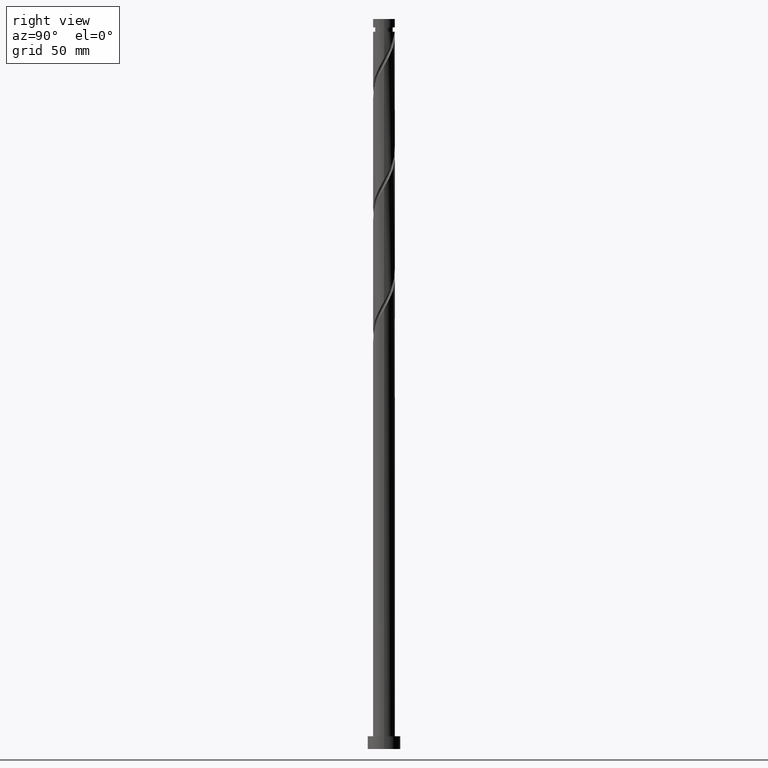
[diagram: clean part render]
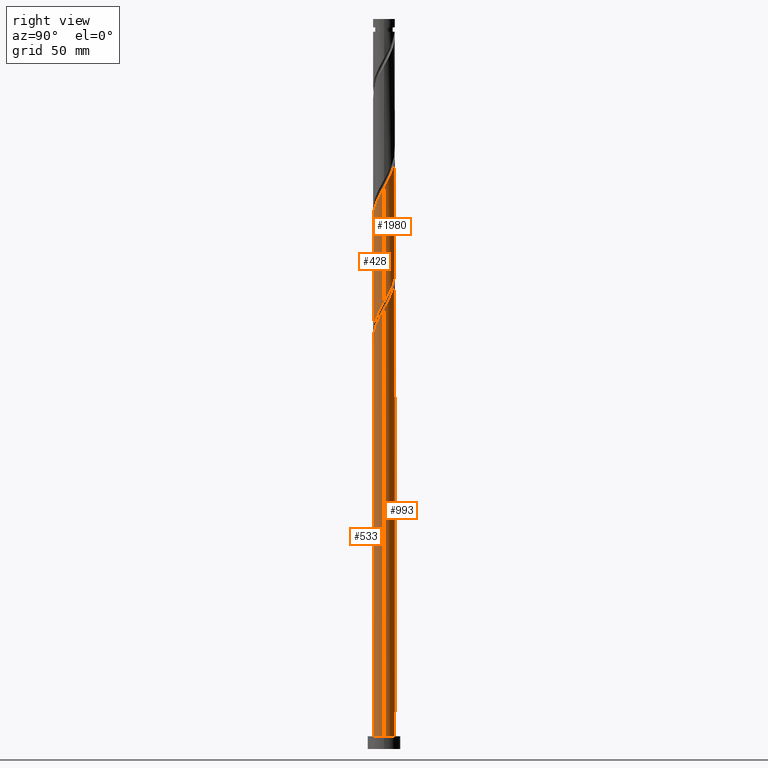
[diagram: same view with one multi-face feature highlighted, each face labeled with its STEP entity id]
A machine part, right view. The highlighted faces form ONE feature: a constant-radius fillet chain: 4 tangent blend faces with common blend radius 6 mm. The faces share edges in the B-rep.
Their STEP definitions:
[1] entity #533 (Cylinder):
#4 = EDGE_LOOP ( 'NONE', ( #1897, #1946, #1798, #1835 ) ) ;
#95 = CARTESIAN_POINT ( 'NONE',  ( -3.063968989743309113, -5.197093653152656145, 218.6103501158607969 ) ) ;
#107 = CARTESIAN_POINT ( 'NONE',  ( 5.689221836516478170, -1.905978723623156901, 237.4992390047497111 ) ) ;
#141 = CARTESIAN_POINT ( 'NONE',  ( 6.000000000000008882, 3.318548223387681689E-15, 240.9293513167838228 ) ) ;
#152 = DIRECTION ( 'NONE',  ( 1.000000000000000000, 0.000000000000000000, 0.000000000000000000 ) ) ;
#217 = CARTESIAN_POINT ( 'NONE',  ( -0.05462725276908186184, -5.999751316784303512, 224.1659056714163967 ) ) ;
#241 = CARTESIAN_POINT ( 'NONE',  ( -3.570759717274362366, -4.821791683751050606, 217.4992390047497395 ) ) ;
#274 = FACE_OUTER_BOUND ( 'NONE', #4, .T. ) ;
#298 = CARTESIAN_POINT ( 'NONE',  ( 1.811997827890124535, -5.754507127588753157, 227.4992390047497395 ) ) ;
#309 = DIRECTION ( 'NONE',  ( -1.000000000000000000, 0.000000000000000000, 0.000000000000000000 ) ) ;
#362 = VECTOR ( 'NONE', #2004, 1000.000000000000000 ) ;
#372 = CARTESIAN_POINT ( 'NONE',  ( -1.916477387274986510, -5.720559660890874198, 220.8325723380830823 ) ) ;
#406 = CARTESIAN_POINT ( 'NONE',  ( -6.000000000000007994, 2.819271148337463204E-14, 207.5960179834504231 ) ) ;
#426 = CARTESIAN_POINT ( 'NONE',  ( 2.390414231247771415, -5.503264467845264463, 228.6103501158608253 ) ) ;
#447 = DIRECTION ( 'NONE',  ( 0.000000000000000000, 0.000000000000000000, 1.000000000000000000 ) ) ;
#469 = VERTEX_POINT ( 'NONE', #532 ) ;
#494 = CARTESIAN_POINT ( 'NONE',  ( -6.000000000000000888, 0.000000000000000000, 7.000000000000000000 ) ) ;
#499 = EDGE_CURVE ( 'NONE', #1539, #601, #504, .T. ) ;
#504 =( BOUNDED_CURVE ( )  B_SPLINE_CURVE ( 2, ( #406, #1334, #1645, #1161, #1035, #1478, #880, #518, #509, #1498, #241, #95, #1152, #372, #1003, #1621, #217, #691, #587, #298, #426, #1522, #1971, #1054, #1239, #1677, #1085, #615, #107, #892, #1543, #1202, #141 ),
 .UNSPECIFIED., .F., .T. ) 
 B_SPLINE_CURVE_WITH_KNOTS ( ( 3, 2, 2, 2, 2, 2, 2, 2, 2, 2, 2, 2, 2, 2, 2, 2, 3 ),
 ( 0.05452860127731127410, 0.05833333333333334814, 0.06666666666666665186, 0.07499999999999995559, 0.08333333333333337034, 0.09166666666666667407, 0.09999999999999997780, 0.1083333333333332815, 0.1166666666666666963, 0.1250000000000000000, 0.1333333333333333037, 0.1416666666666667185, 0.1500000000000000222, 0.1583333333333333259, 0.1666666666666666297, 0.1750000000000000444, 0.1795286012773115170 ),
 .UNSPECIFIED. ) 
 CURVE ( )  GEOMETRIC_REPRESENTATION_ITEM ( )  RATIONAL_B_SPLINE_CURVE ( ( 0.9066196499552254817, 0.9068171577856380949, 0.9090909090909370383, 0.9041108139711853120, 0.9090909090909370383, 0.9041108139711853120, 0.9090909090909370383, 0.9041108139711853120, 0.9090909090909370383, 0.9041108139711853120, 0.9090909090909370383, 0.9041108139711853120, 0.9090909090909370383, 0.9041108139711853120, 0.9090909090909370383, 0.9041108139711853120, 0.9090909090909370383, 0.9041108139711853120, 0.9090909090909370383, 0.9041108139711853120, 0.9090909090909370383, 0.9041108139711853120, 0.9090909090909370383, 0.9041108139711853120, 0.9090909090909370383, 0.9041108139711853120, 0.9090909090909370383, 0.9041108139711853120, 0.9090909090909370383, 0.9041108139711853120, 0.9090909090909370383, 0.9063845652764841443, 0.9066196499552253707 ) ) 
 REPRESENTATION_ITEM ( '' )  );
#509 = CARTESIAN_POINT ( 'NONE',  ( -4.495236911988532036, -3.974021276376851208, 215.2770167825274825 ) ) ;
#518 = CARTESIAN_POINT ( 'NONE',  ( -4.912923379171648897, -3.501552838404256018, 214.1659056714164251 ) ) ;
#532 = CARTESIAN_POINT ( 'NONE',  ( 6.000000000000000888, 7.347880794884120722E-16, 7.000000000000000000 ) ) ;
#533 = ADVANCED_FACE ( 'NONE', ( #274 ), #1214, .T. ) ;
#587 = CARTESIAN_POINT ( 'NONE',  ( 1.193984924527947911, -5.880000000000006999, 226.3881278936386252 ) ) ;
#591 = AXIS2_PLACEMENT_3D ( 'NONE', #1981, #736, #309 ) ;
#601 = VERTEX_POINT ( 'NONE', #1993 ) ;
#615 = CARTESIAN_POINT ( 'NONE',  ( 5.488895400337416852, -2.503940034007006599, 236.3881278936386252 ) ) ;
#661 = AXIS2_PLACEMENT_3D ( 'NONE', #1227, #447, #152 ) ;
#691 = CARTESIAN_POINT ( 'NONE',  ( 0.5759720211657686217, -6.005492872411262617, 225.2770167825275109 ) ) ;
#736 = DIRECTION ( 'NONE',  ( -0.000000000000000000, -0.000000000000000000, -1.000000000000000000 ) ) ;
#793 = LINE ( 'NONE', #1715, #362 ) ;
#813 = LINE ( 'NONE', #1432, #1216 ) ;
#879 = EDGE_CURVE ( 'NONE', #1688, #469, #1151, .T. ) ;
#880 = CARTESIAN_POINT ( 'NONE',  ( -5.223250683108884296, -2.952567069755174689, 213.0547945603052824 ) ) ;
#892 = CARTESIAN_POINT ( 'NONE',  ( 5.889548272695538600, -1.308017413239306981, 238.6103501158609106 ) ) ;
#1003 = CARTESIAN_POINT ( 'NONE',  ( -1.300851956989458325, -5.857284711024109747, 221.9436834491942250 ) ) ;
#1035 = CARTESIAN_POINT ( 'NONE',  ( -5.722983335439801422, -1.802071514196482704, 210.8325723380830539 ) ) ;
#1054 = CARTESIAN_POINT ( 'NONE',  ( 3.995911296558496417, -4.519997933604003926, 231.9436834491941966 ) ) ;
#1085 = CARTESIAN_POINT ( 'NONE',  ( 5.168623430339803093, -3.047184247029130599, 235.2770167825274825 ) ) ;
#1104 = EDGE_CURVE ( 'NONE', #601, #469, #813, .T. ) ;
#1131 = DIRECTION ( 'NONE',  ( -0.000000000000000000, -0.000000000000000000, -1.000000000000000000 ) ) ;
#1151 = CIRCLE ( 'NONE', #661, 6.000000000000000888 ) ;
#1152 = CARTESIAN_POINT ( 'NONE',  ( -2.490223188509146812, -5.458826657021764284, 219.7214612269719680 ) ) ;
#1161 = CARTESIAN_POINT ( 'NONE',  ( -5.912388683833484038, -1.200561727286872271, 209.7214612269719680 ) ) ;
#1202 = CARTESIAN_POINT ( 'NONE',  ( 6.000000000000008882, -0.3418424246785950471, 240.3237600073993008 ) ) ;
#1214 = CYLINDRICAL_SURFACE ( 'NONE', #591, 6.000000000000000888 ) ;
#1216 = VECTOR ( 'NONE', #1131, 1000.000000000000000 ) ;
#1227 = CARTESIAN_POINT ( 'NONE',  ( 0.000000000000000000, 0.000000000000000000, 7.000000000000000000 ) ) ;
#1239 = CARTESIAN_POINT ( 'NONE',  ( 4.422131378450344208, -4.055213196827626376, 233.0547945603053108 ) ) ;
#1334 = CARTESIAN_POINT ( 'NONE',  ( -6.000000000000008882, -0.2870639957204812465, 208.1045665090144610 ) ) ;
#1415 = CARTESIAN_POINT ( 'NONE',  ( -6.000000000000007994, 2.819271148337463204E-14, 207.5960179834504231 ) ) ;
#1432 = CARTESIAN_POINT ( 'NONE',  ( 6.000000000000000888, 7.347880794884120722E-16, 400.0000000000000000 ) ) ;
#1478 = CARTESIAN_POINT ( 'NONE',  ( -5.533577987046123248, -2.403581301106092916, 211.9436834491941966 ) ) ;
#1498 = CARTESIAN_POINT ( 'NONE',  ( -4.077550444805414287, -4.446489714349447731, 216.3881278936386536 ) ) ;
#1522 = CARTESIAN_POINT ( 'NONE',  ( 2.968830634605418073, -5.252021808101776656, 229.7214612269719964 ) ) ;
#1539 = VERTEX_POINT ( 'NONE', #1415 ) ;
#1543 = CARTESIAN_POINT ( 'NONE',  ( 5.961173948522133337, -0.6814727840942111925, 239.7214612269719680 ) ) ;
#1621 = CARTESIAN_POINT ( 'NONE',  ( -0.6852265267039298058, -5.994009761157345295, 223.0547945603053108 ) ) ;
#1623 = EDGE_CURVE ( 'NONE', #1539, #1688, #793, .T. ) ;
#1645 = CARTESIAN_POINT ( 'NONE',  ( -5.972594154091105167, -0.5728167861688754359, 208.6103501158609106 ) ) ;
#1677 = CARTESIAN_POINT ( 'NONE',  ( 4.848351460342188446, -3.590428460051252824, 234.1659056714164251 ) ) ;
#1688 = VERTEX_POINT ( 'NONE', #494 ) ;
#1715 = CARTESIAN_POINT ( 'NONE',  ( -6.000000000000000888, 0.000000000000000000, 400.0000000000000000 ) ) ;
#1798 = ORIENTED_EDGE ( 'NONE', *, *, #1623, .T. ) ;
#1835 = ORIENTED_EDGE ( 'NONE', *, *, #879, .T. ) ;
#1897 = ORIENTED_EDGE ( 'NONE', *, *, #1104, .F. ) ;
#1946 = ORIENTED_EDGE ( 'NONE', *, *, #499, .F. ) ;
#1971 = CARTESIAN_POINT ( 'NONE',  ( 3.482370965581957467, -4.886009870852891623, 230.8325723380830823 ) ) ;
#1981 = CARTESIAN_POINT ( 'NONE',  ( 0.000000000000000000, 0.000000000000000000, 400.0000000000000000 ) ) ;
#1993 = CARTESIAN_POINT ( 'NONE',  ( 6.000000000000008882, 3.318548223387681689E-15, 240.9293513167838228 ) ) ;
#2004 = DIRECTION ( 'NONE',  ( -0.000000000000000000, -0.000000000000000000, -1.000000000000000000 ) ) ;
[2] entity #993 (Cylinder):
#16 = CARTESIAN_POINT ( 'NONE',  ( -3.570759717274355705, 4.821791683751045277, 201.9436834491942250 ) ) ;
#18 = CARTESIAN_POINT ( 'NONE',  ( -6.000000000000008882, 0.3418424246785894960, 273.6570933407326152 ) ) ;
#33 = CARTESIAN_POINT ( 'NONE',  ( -6.000000000000005329, 0.3418424246786118115, 206.9904266740658727 ) ) ;
#35 = CARTESIAN_POINT ( 'NONE',  ( 0.05462725276908272226, 5.999751316784303512, 257.4992390047497111 ) ) ;
#43 = CARTESIAN_POINT ( 'NONE',  ( 4.495236911988532924, 3.974021276376848988, 248.6103501158608537 ) ) ;
#57 = CARTESIAN_POINT ( 'NONE',  ( -5.889548272695540376, 1.308017413239303206, 205.2770167825275394 ) ) ;
#102 = ORIENTED_EDGE ( 'NONE', *, *, #1623, .F. ) ;
#115 = ORIENTED_EDGE ( 'NONE', *, *, #1293, .F. ) ;
#144 = ORIENTED_EDGE ( 'NONE', *, *, #275, .F. ) ;
#151 = CARTESIAN_POINT ( 'NONE',  ( -1.916477387274980959, 5.720559660890866205, 198.6103501158608822 ) ) ;
#166 = CARTESIAN_POINT ( 'NONE',  ( -2.490223188509142371, 5.458826657021758066, 199.7214612269719964 ) ) ;
#176 = CARTESIAN_POINT ( 'NONE',  ( -3.995911296558498638, 4.519997933604003038, 198.6103501158608822 ) ) ;
#177 = CARTESIAN_POINT ( 'NONE',  ( 0.000000000000000000, 0.000000000000000000, 400.0000000000000000 ) ) ;
#178 = CARTESIAN_POINT ( 'NONE',  ( 3.063968989743312665, 5.197093653152654369, 251.9436834491941681 ) ) ;
#198 = CARTESIAN_POINT ( 'NONE',  ( 0.6852265267039308050, 5.994009761157345295, 256.3881278936386821 ) ) ;
#199 = CIRCLE ( 'NONE', #1831, 6.000000000000000888 ) ;
#213 = CARTESIAN_POINT ( 'NONE',  ( -1.193984924527947244, 5.880000000000007887, 193.0547945603053108 ) ) ;
#215 = VERTEX_POINT ( 'NONE', #1047 ) ;
#275 = EDGE_CURVE ( 'NONE', #601, #1719, #943, .T. ) ;
#278 = CARTESIAN_POINT ( 'NONE',  ( 4.912923379171648897, 3.501552838404255574, 247.4992390047497395 ) ) ;
#289 = CARTESIAN_POINT ( 'NONE',  ( -1.811997827890126533, 5.754507127588748716, 260.8325723380830254 ) ) ;
#296 = CARTESIAN_POINT ( 'NONE',  ( -0.05462725276907857280, 5.999751316784295518, 195.2770167825275109 ) ) ;
#334 = CARTESIAN_POINT ( 'NONE',  ( -3.482370965581957911, 4.886009870852888071, 197.4992390047497111 ) ) ;
#335 = DIRECTION ( 'NONE',  ( -1.000000000000000000, 0.000000000000000000, 0.000000000000000000 ) ) ;
#357 = CARTESIAN_POINT ( 'NONE',  ( -5.961173948522133337, 0.6814727840942104153, 206.3881278936385968 ) ) ;
#362 = VECTOR ( 'NONE', #2004, 1000.000000000000000 ) ;
#383 = EDGE_CURVE ( 'NONE', #1586, #1111, #560, .T. ) ;
#464 = CARTESIAN_POINT ( 'NONE',  ( -1.193984924527947244, 5.880000000000007887, 193.0547945603053392 ) ) ;
#466 = CYLINDRICAL_SURFACE ( 'NONE', #1676, 6.000000000000000888 ) ;
#469 = VERTEX_POINT ( 'NONE', #532 ) ;
#489 = CARTESIAN_POINT ( 'NONE',  ( 3.570759717274364142, 4.821791683751050606, 250.8325723380830254 ) ) ;
#494 = CARTESIAN_POINT ( 'NONE',  ( -6.000000000000000888, 0.000000000000000000, 7.000000000000000000 ) ) ;
#532 = CARTESIAN_POINT ( 'NONE',  ( 6.000000000000000888, 7.347880794884120722E-16, 7.000000000000000000 ) ) ;
#542 = DIRECTION ( 'NONE',  ( 0.000000000000000000, 1.000000000000000000, -1.387778780781445518E-14 ) ) ;
#543 = ORIENTED_EDGE ( 'NONE', *, *, #383, .T. ) ;
#560 = CIRCLE ( 'NONE', #826, 6.000000000000000888 ) ;
#576 = ORIENTED_EDGE ( 'NONE', *, *, #1865, .T. ) ;
#600 = CARTESIAN_POINT ( 'NONE',  ( -1.300851956989454106, 5.857284711024100865, 197.4992390047497111 ) ) ;
#601 = VERTEX_POINT ( 'NONE', #1993 ) ;
#607 = CARTESIAN_POINT ( 'NONE',  ( -5.488895400337417740, 2.503940034007005710, 269.7214612269719396 ) ) ;
#640 = CARTESIAN_POINT ( 'NONE',  ( 1.193984924527949021, 5.879999999999997229, 193.0547945603053392 ) ) ;
#642 = CARTESIAN_POINT ( 'NONE',  ( 4.077550444805415175, 4.446489714349447731, 249.7214612269719680 ) ) ;
#652 = CARTESIAN_POINT ( 'NONE',  ( -1.193984924527946578, 5.880000000000006999, 259.7214612269719964 ) ) ;
#662 = CARTESIAN_POINT ( 'NONE',  ( -5.168623430339803093, 3.047184247029129267, 268.6103501158608537 ) ) ;
#668 =( BOUNDED_CURVE ( )  B_SPLINE_CURVE ( 2, ( #1686, #1237, #1870, #913, #1706, #955, #1531, #936, #754, #1376, #16, #1074, #166, #151, #600, #1226, #296, #1399, #1272 ),
 .UNSPECIFIED., .F., .T. ) 
 B_SPLINE_CURVE_WITH_KNOTS ( ( 3, 2, 2, 2, 2, 2, 2, 2, 2, 3 ),
 ( 0.9295286012773114059, 0.9333333333333333481, 0.9416666666666666519, 0.9499999999999999556, 0.9583333333333333703, 0.9666666666666666741, 0.9749999999999999778, 0.9833333333333332815, 0.9916666666666666963, 1.000000000000000000 ),
 .UNSPECIFIED. ) 
 CURVE ( )  GEOMETRIC_REPRESENTATION_ITEM ( )  RATIONAL_B_SPLINE_CURVE ( ( 0.9066196499552193755, 0.9068171577856320997, 0.9090909090909310430, 0.9041108139711793168, 0.9090909090909310430, 0.9041108139711793168, 0.9090909090909310430, 0.9041108139711793168, 0.9090909090909310430, 0.9041108139711793168, 0.9090909090909310430, 0.9041108139711793168, 0.9090909090909310430, 0.9041108139711793168, 0.9090909090909310430, 0.9041108139711793168, 0.9090909090909310430, 0.9041108139711793168, 0.9090909090909310430 ) ) 
 REPRESENTATION_ITEM ( '' )  );
#713 = CARTESIAN_POINT ( 'NONE',  ( 0.000000000000000000, 0.000000000000000000, 193.0547945603053961 ) ) ;
#738 = CARTESIAN_POINT ( 'NONE',  ( 5.972594154091105167, 0.5728167861688723272, 241.9436834491941966 ) ) ;
#742 = ORIENTED_EDGE ( 'NONE', *, *, #1104, .T. ) ;
#754 = CARTESIAN_POINT ( 'NONE',  ( -4.495236911988522266, 3.974021276376848100, 204.1659056714164251 ) ) ;
#759 = CARTESIAN_POINT ( 'NONE',  ( -4.422131378450345096, 4.055213196827626376, 266.3881278936385684 ) ) ;
#793 = LINE ( 'NONE', #1715, #362 ) ;
#804 = CARTESIAN_POINT ( 'NONE',  ( -1.811997827890126533, 5.754507127588748716, 194.1659056714164251 ) ) ;
#806 = DIRECTION ( 'NONE',  ( -0.000000000000000000, -0.000000000000000000, -1.000000000000000000 ) ) ;
#812 = CARTESIAN_POINT ( 'NONE',  ( -2.968830634605418961, 5.252021808101774880, 196.3881278936386821 ) ) ;
#813 = LINE ( 'NONE', #1432, #1216 ) ;
#815 = CARTESIAN_POINT ( 'NONE',  ( -0.5759720211657650690, 6.005492872411263505, 258.6103501158607969 ) ) ;
#821 = DIRECTION ( 'NONE',  ( 0.000000000000000000, 0.000000000000000000, 1.000000000000000000 ) ) ;
#826 = AXIS2_PLACEMENT_3D ( 'NONE', #713, #1454, #542 ) ;
#840 = CARTESIAN_POINT ( 'NONE',  ( -4.848351460342189334, 3.590428460051251935, 200.8325723380830823 ) ) ;
#913 = CARTESIAN_POINT ( 'NONE',  ( -5.912388683833474268, 1.200561727286872271, 209.7214612269719680 ) ) ;
#936 = CARTESIAN_POINT ( 'NONE',  ( -4.912923379171640015, 3.501552838404253354, 205.2770167825275394 ) ) ;
#943 =( BOUNDED_CURVE ( )  B_SPLINE_CURVE ( 2, ( #1668, #1514, #738, #1984, #1824, #1057, #1679, #278, #43, #642, #489, #178, #1996, #983, #968, #198, #35, #815, #652, #289, #1751, #975, #1900, #1433, #759, #1229, #662, #607, #1444, #1847, #1734, #18, #1535 ),
 .UNSPECIFIED., .F., .T. ) 
 B_SPLINE_CURVE_WITH_KNOTS ( ( 3, 2, 2, 2, 2, 2, 2, 2, 2, 2, 2, 2, 2, 2, 2, 2, 3 ),
 ( 0.1795286012773115170, 0.1833333333333333481, 0.1916666666666666519, 0.1999999999999999556, 0.2083333333333333703, 0.2166666666666666741, 0.2249999999999999778, 0.2333333333333332815, 0.2416666666666666963, 0.2500000000000000000, 0.2583333333333333037, 0.2666666666666667185, 0.2750000000000000222, 0.2833333333333333259, 0.2916666666666666297, 0.3000000000000000444, 0.3045286012773115725 ),
 .UNSPECIFIED. ) 
 CURVE ( )  GEOMETRIC_REPRESENTATION_ITEM ( )  RATIONAL_B_SPLINE_CURVE ( ( 0.9066196499552253707, 0.9068171577856380949, 0.9090909090909370383, 0.9041108139711853120, 0.9090909090909370383, 0.9041108139711853120, 0.9090909090909370383, 0.9041108139711853120, 0.9090909090909370383, 0.9041108139711853120, 0.9090909090909370383, 0.9041108139711853120, 0.9090909090909370383, 0.9041108139711853120, 0.9090909090909370383, 0.9041108139711853120, 0.9090909090909370383, 0.9041108139711853120, 0.9090909090909370383, 0.9041108139711853120, 0.9090909090909370383, 0.9041108139711853120, 0.9090909090909370383, 0.9041108139711853120, 0.9090909090909370383, 0.9041108139711853120, 0.9090909090909370383, 0.9041108139711853120, 0.9090909090909370383, 0.9041108139711853120, 0.9090909090909370383, 0.9063845652764841443, 0.9066196499552254817 ) ) 
 REPRESENTATION_ITEM ( '' )  );
#955 = CARTESIAN_POINT ( 'NONE',  ( -5.533577987046111701, 2.403581301106092916, 207.4992390047497963 ) ) ;
#968 = CARTESIAN_POINT ( 'NONE',  ( 1.300851956989461655, 5.857284711024107970, 255.2770167825274541 ) ) ;
#975 = CARTESIAN_POINT ( 'NONE',  ( -2.968830634605418961, 5.252021808101774880, 263.0547945603053108 ) ) ;
#983 = CARTESIAN_POINT ( 'NONE',  ( 1.916477387274987398, 5.720559660890873310, 254.1659056714163682 ) ) ;
#993 = ADVANCED_FACE ( 'NONE', ( #2014 ), #466, .T. ) ;
#1047 = CARTESIAN_POINT ( 'NONE',  ( -5.999999999999999112, -8.759771436509885774E-15, 211.8469044704934845 ) ) ;
#1057 = CARTESIAN_POINT ( 'NONE',  ( 5.533577987046123248, 2.403581301106089363, 245.2770167825275394 ) ) ;
#1074 = CARTESIAN_POINT ( 'NONE',  ( -3.063968989743303339, 5.197093653152651704, 200.8325723380831107 ) ) ;
#1104 = EDGE_CURVE ( 'NONE', #601, #469, #813, .T. ) ;
#1111 = VERTEX_POINT ( 'NONE', #640 ) ;
#1120 = EDGE_LOOP ( 'NONE', ( #144, #742, #576, #102, #1421, #543, #1651, #115 ) ) ;
#1129 = CARTESIAN_POINT ( 'NONE',  ( -2.390414231247772747, 5.503264467845264463, 195.2770167825275109 ) ) ;
#1131 = DIRECTION ( 'NONE',  ( -0.000000000000000000, -0.000000000000000000, -1.000000000000000000 ) ) ;
#1178 = CARTESIAN_POINT ( 'NONE',  ( -6.000000000000000888, 0.000000000000000000, 400.0000000000000000 ) ) ;
#1216 = VECTOR ( 'NONE', #1131, 1000.000000000000000 ) ;
#1226 = CARTESIAN_POINT ( 'NONE',  ( -0.6852265267039274743, 5.994009761157336413, 196.3881278936386252 ) ) ;
#1229 = CARTESIAN_POINT ( 'NONE',  ( -4.848351460342189334, 3.590428460051251935, 267.4992390047498247 ) ) ;
#1237 = CARTESIAN_POINT ( 'NONE',  ( -5.999999999999999112, 0.2870639957204937920, 211.3383559449293898 ) ) ;
#1272 = CARTESIAN_POINT ( 'NONE',  ( 1.193984924527949021, 5.879999999999997229, 193.0547945603053392 ) ) ;
#1293 = EDGE_CURVE ( 'NONE', #1719, #215, #1779, .T. ) ;
#1376 = CARTESIAN_POINT ( 'NONE',  ( -4.077550444805408070, 4.446489714349443290, 203.0547945603052824 ) ) ;
#1399 = CARTESIAN_POINT ( 'NONE',  ( 0.5759720211657700650, 6.005492872411254623, 194.1659056714163967 ) ) ;
#1415 = CARTESIAN_POINT ( 'NONE',  ( -6.000000000000007994, 2.819271148337463204E-14, 207.5960179834504231 ) ) ;
#1421 = ORIENTED_EDGE ( 'NONE', *, *, #1770, .F. ) ;
#1424 = CARTESIAN_POINT ( 'NONE',  ( -5.488895400337417740, 2.503940034007005710, 203.0547945603053108 ) ) ;
#1431 = CARTESIAN_POINT ( 'NONE',  ( -6.000000000000007994, 1.145048621222956892E-14, 274.2626846501171372 ) ) ;
#1432 = CARTESIAN_POINT ( 'NONE',  ( 6.000000000000000888, 7.347880794884120722E-16, 400.0000000000000000 ) ) ;
#1433 = CARTESIAN_POINT ( 'NONE',  ( -3.995911296558498638, 4.519997933604003038, 265.2770167825275394 ) ) ;
#1444 = CARTESIAN_POINT ( 'NONE',  ( -5.689221836516479058, 1.905978723623155346, 270.8325723380830254 ) ) ;
#1454 = DIRECTION ( 'NONE',  ( -2.567906592516313186E-30, -1.156482317317871607E-14, -1.000000000000000000 ) ) ;
#1514 = CARTESIAN_POINT ( 'NONE',  ( 6.000000000000008882, 0.2870639957204970116, 241.4378998423478606 ) ) ;
#1531 = CARTESIAN_POINT ( 'NONE',  ( -5.223250683108875414, 2.952567069755172469, 206.3881278936386536 ) ) ;
#1535 = CARTESIAN_POINT ( 'NONE',  ( -6.000000000000007994, 1.145048621222956892E-14, 274.2626846501171372 ) ) ;
#1539 = VERTEX_POINT ( 'NONE', #1415 ) ;
#1581 = DIRECTION ( 'NONE',  ( 1.000000000000000000, 0.000000000000000000, 0.000000000000000000 ) ) ;
#1586 = VERTEX_POINT ( 'NONE', #464 ) ;
#1596 = CARTESIAN_POINT ( 'NONE',  ( -5.689221836516479058, 1.905978723623155346, 204.1659056714163967 ) ) ;
#1606 = CARTESIAN_POINT ( 'NONE',  ( -5.168623430339803093, 3.047184247029129267, 201.9436834491942250 ) ) ;
#1616 = CARTESIAN_POINT ( 'NONE',  ( -4.422131378450345096, 4.055213196827626376, 199.7214612269719396 ) ) ;
#1623 = EDGE_CURVE ( 'NONE', #1539, #1688, #793, .T. ) ;
#1634 =( BOUNDED_CURVE ( )  B_SPLINE_CURVE ( 2, ( #213, #804, #1129, #812, #334, #176, #1616, #840, #1606, #1424, #1596, #57, #357, #33, #1886 ),
 .UNSPECIFIED., .F., .T. ) 
 B_SPLINE_CURVE_WITH_KNOTS ( ( 3, 2, 2, 2, 2, 2, 2, 3 ),
 ( 0.000000000000000000, 0.008333333333333303727, 0.01666666666666671848, 0.02500000000000002220, 0.03333333333333332593, 0.04166666666666662966, 0.05000000000000004441, 0.05452860127731127410 ),
 .UNSPECIFIED. ) 
 CURVE ( )  GEOMETRIC_REPRESENTATION_ITEM ( )  RATIONAL_B_SPLINE_CURVE ( ( 0.9090909090909370383, 0.9041108139711853120, 0.9090909090909370383, 0.9041108139711853120, 0.9090909090909370383, 0.9041108139711853120, 0.9090909090909370383, 0.9041108139711853120, 0.9090909090909370383, 0.9041108139711853120, 0.9090909090909370383, 0.9041108139711853120, 0.9090909090909370383, 0.9063845652764843663, 0.9066196499552254817 ) ) 
 REPRESENTATION_ITEM ( '' )  );
#1651 = ORIENTED_EDGE ( 'NONE', *, *, #1665, .F. ) ;
#1665 = EDGE_CURVE ( 'NONE', #215, #1111, #668, .T. ) ;
#1668 = CARTESIAN_POINT ( 'NONE',  ( 6.000000000000008882, 3.318548223387681689E-15, 240.9293513167838228 ) ) ;
#1676 = AXIS2_PLACEMENT_3D ( 'NONE', #177, #806, #335 ) ;
#1679 = CARTESIAN_POINT ( 'NONE',  ( 5.223250683108884296, 2.952567069755173801, 246.3881278936385968 ) ) ;
#1686 = CARTESIAN_POINT ( 'NONE',  ( -5.999999999999999112, -8.759771436509885774E-15, 211.8469044704934845 ) ) ;
#1688 = VERTEX_POINT ( 'NONE', #494 ) ;
#1706 = CARTESIAN_POINT ( 'NONE',  ( -5.722983335439793429, 1.802071514196482482, 208.6103501158608822 ) ) ;
#1715 = CARTESIAN_POINT ( 'NONE',  ( -6.000000000000000888, 0.000000000000000000, 400.0000000000000000 ) ) ;
#1719 = VERTEX_POINT ( 'NONE', #1431 ) ;
#1734 = CARTESIAN_POINT ( 'NONE',  ( -5.961173948522133337, 0.6814727840942104153, 273.0547945603053108 ) ) ;
#1736 = VECTOR ( 'NONE', #1928, 1000.000000000000000 ) ;
#1751 = CARTESIAN_POINT ( 'NONE',  ( -2.390414231247772747, 5.503264467845264463, 261.9436834491941681 ) ) ;
#1770 = EDGE_CURVE ( 'NONE', #1586, #1539, #1634, .T. ) ;
#1779 = LINE ( 'NONE', #1178, #1736 ) ;
#1824 = CARTESIAN_POINT ( 'NONE',  ( 5.722983335439801422, 1.802071514196480484, 244.1659056714164251 ) ) ;
#1831 = AXIS2_PLACEMENT_3D ( 'NONE', #1906, #821, #1581 ) ;
#1847 = CARTESIAN_POINT ( 'NONE',  ( -5.889548272695540376, 1.308017413239303206, 271.9436834491941681 ) ) ;
#1865 = EDGE_CURVE ( 'NONE', #469, #1688, #199, .T. ) ;
#1870 = CARTESIAN_POINT ( 'NONE',  ( -5.972594154091097174, 0.5728167861688778784, 210.8325723380830539 ) ) ;
#1886 = CARTESIAN_POINT ( 'NONE',  ( -6.000000000000007994, 2.819271148337463204E-14, 207.5960179834504231 ) ) ;
#1900 = CARTESIAN_POINT ( 'NONE',  ( -3.482370965581957911, 4.886009870852888071, 264.1659056714164535 ) ) ;
#1906 = CARTESIAN_POINT ( 'NONE',  ( 0.000000000000000000, 0.000000000000000000, 7.000000000000000000 ) ) ;
#1928 = DIRECTION ( 'NONE',  ( -0.000000000000000000, -0.000000000000000000, -1.000000000000000000 ) ) ;
#1984 = CARTESIAN_POINT ( 'NONE',  ( 5.912388683833484038, 1.200561727286871383, 243.0547945603053108 ) ) ;
#1993 = CARTESIAN_POINT ( 'NONE',  ( 6.000000000000008882, 3.318548223387681689E-15, 240.9293513167838228 ) ) ;
#1996 = CARTESIAN_POINT ( 'NONE',  ( 2.490223188509147700, 5.458826657021764284, 253.0547945603053108 ) ) ;
#2004 = DIRECTION ( 'NONE',  ( -0.000000000000000000, -0.000000000000000000, -1.000000000000000000 ) ) ;
#2014 = FACE_OUTER_BOUND ( 'NONE', #1120, .T. ) ;
[3] entity #428 (Cylinder):
#26 = CARTESIAN_POINT ( 'NONE',  ( 1.811997827890124535, -5.754507127588753157, 294.1659056714162261 ) ) ;
#34 = CARTESIAN_POINT ( 'NONE',  ( -5.912388683833484038, -1.200561727286872271, 276.3881278936385684 ) ) ;
#37 = CARTESIAN_POINT ( 'NONE',  ( 1.300851956989451885, -5.857284711024101753, 230.8325723380831391 ) ) ;
#86 = CARTESIAN_POINT ( 'NONE',  ( -5.999999999999999112, -8.759771436509885774E-15, 211.8469044704934845 ) ) ;
#94 = VERTEX_POINT ( 'NONE', #345 ) ;
#111 = CARTESIAN_POINT ( 'NONE',  ( -5.488895400337409747, -2.503940034007001270, 216.3881278936386252 ) ) ;
#156 = VERTEX_POINT ( 'NONE', #1277 ) ;
#172 = EDGE_CURVE ( 'NONE', #156, #215, #657, .T. ) ;
#190 = CARTESIAN_POINT ( 'NONE',  ( 1.916477387274979849, -5.720559660890867093, 231.9436834491941681 ) ) ;
#197 = CARTESIAN_POINT ( 'NONE',  ( 3.482370965581957467, -4.886009870852891623, 297.4992390047496542 ) ) ;
#201 = CARTESIAN_POINT ( 'NONE',  ( 3.570759717274353928, -4.821791683751046165, 235.2770167825275394 ) ) ;
#215 = VERTEX_POINT ( 'NONE', #1047 ) ;
#227 = DIRECTION ( 'NONE',  ( -1.000000000000000000, 0.000000000000000000, 0.000000000000000000 ) ) ;
#255 = AXIS2_PLACEMENT_3D ( 'NONE', #1791, #394, #227 ) ;
#318 = CARTESIAN_POINT ( 'NONE',  ( 6.000000000000000888, 7.347880794884120722E-16, 400.0000000000000000 ) ) ;
#319 = CARTESIAN_POINT ( 'NONE',  ( 6.000000000000008882, 3.318548223387681294E-15, 307.5960179834505084 ) ) ;
#345 = CARTESIAN_POINT ( 'NONE',  ( 6.000000000000008882, 3.318548223387681689E-15, 307.5960179834505084 ) ) ;
#361 = CYLINDRICAL_SURFACE ( 'NONE', #255, 6.000000000000000888 ) ;
#374 = CARTESIAN_POINT ( 'NONE',  ( 5.912388683833474268, -1.200561727286872493, 243.0547945603053108 ) ) ;
#394 = DIRECTION ( 'NONE',  ( -0.000000000000000000, -0.000000000000000000, -1.000000000000000000 ) ) ;
#428 = ADVANCED_FACE ( 'NONE', ( #1760 ), #361, .T. ) ;
#433 = VECTOR ( 'NONE', #1569, 1000.000000000000000 ) ;
#473 = CARTESIAN_POINT ( 'NONE',  ( 5.168623430339803093, -3.047184247029130599, 301.9436834491941681 ) ) ;
#480 = CARTESIAN_POINT ( 'NONE',  ( -1.300851956989458325, -5.857284711024109747, 288.6103501158609106 ) ) ;
#486 = CARTESIAN_POINT ( 'NONE',  ( 2.390414231247771415, -5.503264467845264463, 295.2770167825273688 ) ) ;
#497 = CARTESIAN_POINT ( 'NONE',  ( 5.889548272695538600, -1.308017413239306981, 305.2770167825273688 ) ) ;
#511 = CARTESIAN_POINT ( 'NONE',  ( -1.193984924527948133, -5.879999999999997229, 226.3881278936386252 ) ) ;
#521 = CARTESIAN_POINT ( 'NONE',  ( 0.05462725276907706706, -5.999751316784294630, 228.6103501158608537 ) ) ;
#545 = CARTESIAN_POINT ( 'NONE',  ( -4.422131378450339767, -4.055213196827619271, 219.7214612269719964 ) ) ;
#565 = CARTESIAN_POINT ( 'NONE',  ( -6.000000000000007994, 1.145048621222956892E-14, 274.2626846501171372 ) ) ;
#589 = CARTESIAN_POINT ( 'NONE',  ( -3.482370965581955247, -4.886009870852880077, 221.9436834491942534 ) ) ;
#623 = CARTESIAN_POINT ( 'NONE',  ( -5.972594154091105167, -0.5728167861688754359, 275.2770167825275394 ) ) ;
#657 =( BOUNDED_CURVE ( )  B_SPLINE_CURVE ( 2, ( #694, #673, #1893, #374, #1920, #1763, #1126, #847, #1469, #682, #201, #1745, #1603, #190, #37, #664, #521, #1304, #511, #985, #1144, #1369, #589, #1357, #545, #1348, #1836, #111, #1184, #1647, #715, #906, #86 ),
 .UNSPECIFIED., .F., .T. ) 
 B_SPLINE_CURVE_WITH_KNOTS ( ( 3, 2, 2, 2, 2, 2, 2, 2, 2, 2, 2, 2, 2, 2, 2, 2, 3 ),
 ( 0.8045286012773114059, 0.8083333333333333481, 0.8166666666666666519, 0.8249999999999999556, 0.8333333333333333703, 0.8416666666666666741, 0.8499999999999999778, 0.8583333333333332815, 0.8666666666666666963, 0.8750000000000000000, 0.8833333333333333037, 0.8916666666666667185, 0.9000000000000000222, 0.9083333333333333259, 0.9166666666666666297, 0.9250000000000000444, 0.9295286012773114059 ),
 .UNSPECIFIED. ) 
 CURVE ( )  GEOMETRIC_REPRESENTATION_ITEM ( )  RATIONAL_B_SPLINE_CURVE ( ( 0.9066196499552193755, 0.9068171577856320997, 0.9090909090909310430, 0.9041108139711793168, 0.9090909090909310430, 0.9041108139711793168, 0.9090909090909310430, 0.9041108139711793168, 0.9090909090909310430, 0.9041108139711793168, 0.9090909090909310430, 0.9041108139711793168, 0.9090909090909310430, 0.9041108139711793168, 0.9090909090909310430, 0.9041108139711793168, 0.9090909090909310430, 0.9041108139711793168, 0.9090909090909310430, 0.9041108139711793168, 0.9090909090909310430, 0.9041108139711793168, 0.9090909090909310430, 0.9041108139711793168, 0.9090909090909310430, 0.9041108139711793168, 0.9090909090909310430, 0.9041108139711793168, 0.9090909090909310430, 0.9041108139711793168, 0.9090909090909310430, 0.9063845652764782601, 0.9066196499552193755 ) ) 
 REPRESENTATION_ITEM ( '' )  );
#660 = CARTESIAN_POINT ( 'NONE',  ( -4.912923379171648897, -3.501552838404256018, 280.8325723380831391 ) ) ;
#664 = CARTESIAN_POINT ( 'NONE',  ( 0.6852265267039264751, -5.994009761157336413, 229.7214612269720249 ) ) ;
#673 = CARTESIAN_POINT ( 'NONE',  ( 5.999999999999999112, -0.2870639957204966231, 244.6716892782627326 ) ) ;
#682 = CARTESIAN_POINT ( 'NONE',  ( 4.077550444805407182, -4.446489714349444178, 236.3881278936386252 ) ) ;
#694 = CARTESIAN_POINT ( 'NONE',  ( 5.999999999999999112, 6.158747153314116542E-15, 245.1802378038268273 ) ) ;
#715 = CARTESIAN_POINT ( 'NONE',  ( -5.961173948522126231, -0.6814727840942079728, 213.0547945603053108 ) ) ;
#732 = ORIENTED_EDGE ( 'NONE', *, *, #1293, .T. ) ;
#786 = LINE ( 'NONE', #318, #433 ) ;
#790 = ORIENTED_EDGE ( 'NONE', *, *, #1576, .F. ) ;
#796 = CARTESIAN_POINT ( 'NONE',  ( -4.495236911988532036, -3.974021276376851208, 281.9436834491941113 ) ) ;
#803 =( BOUNDED_CURVE ( )  B_SPLINE_CURVE ( 2, ( #565, #1666, #623, #34, #974, #1582, #1417, #660, #796, #1590, #948, #1400, #1742, #1273, #480, #1599, #1248, #1887, #967, #26, #486, #1112, #197, #1122, #956, #1408, #473, #1281, #1872, #497, #1899, #1561, #319 ),
 .UNSPECIFIED., .F., .T. ) 
 B_SPLINE_CURVE_WITH_KNOTS ( ( 3, 2, 2, 2, 2, 2, 2, 2, 2, 2, 2, 2, 2, 2, 2, 2, 3 ),
 ( 0.3045286012773115725, 0.3083333333333333481, 0.3166666666666666519, 0.3249999999999999556, 0.3333333333333333703, 0.3416666666666666741, 0.3499999999999999778, 0.3583333333333332815, 0.3666666666666666963, 0.3750000000000000000, 0.3833333333333333037, 0.3916666666666667185, 0.4000000000000000222, 0.4083333333333333259, 0.4166666666666666297, 0.4250000000000000444, 0.4295286012773115725 ),
 .UNSPECIFIED. ) 
 CURVE ( )  GEOMETRIC_REPRESENTATION_ITEM ( )  RATIONAL_B_SPLINE_CURVE ( ( 0.9066196499552254817, 0.9068171577856382060, 0.9090909090909370383, 0.9041108139711853120, 0.9090909090909370383, 0.9041108139711853120, 0.9090909090909370383, 0.9041108139711853120, 0.9090909090909370383, 0.9041108139711853120, 0.9090909090909370383, 0.9041108139711853120, 0.9090909090909370383, 0.9041108139711853120, 0.9090909090909370383, 0.9041108139711853120, 0.9090909090909370383, 0.9041108139711853120, 0.9090909090909370383, 0.9041108139711853120, 0.9090909090909370383, 0.9041108139711853120, 0.9090909090909370383, 0.9041108139711853120, 0.9090909090909370383, 0.9041108139711853120, 0.9090909090909370383, 0.9041108139711853120, 0.9090909090909370383, 0.9041108139711853120, 0.9090909090909370383, 0.9063845652764841443, 0.9066196499552254817 ) ) 
 REPRESENTATION_ITEM ( '' )  );
#816 = EDGE_LOOP ( 'NONE', ( #790, #1867, #732, #2001 ) ) ;
#847 = CARTESIAN_POINT ( 'NONE',  ( 4.912923379171636462, -3.501552838404256462, 238.6103501158608537 ) ) ;
#906 = CARTESIAN_POINT ( 'NONE',  ( -5.999999999999999112, -0.3418424246785992660, 212.4524957798780349 ) ) ;
#920 = EDGE_CURVE ( 'NONE', #1719, #94, #803, .T. ) ;
#948 = CARTESIAN_POINT ( 'NONE',  ( -3.570759717274362366, -4.821791683751050606, 284.1659056714163398 ) ) ;
#956 = CARTESIAN_POINT ( 'NONE',  ( 4.422131378450344208, -4.055213196827626376, 299.7214612269719396 ) ) ;
#967 = CARTESIAN_POINT ( 'NONE',  ( 1.193984924527947911, -5.880000000000006999, 293.0547945603052540 ) ) ;
#974 = CARTESIAN_POINT ( 'NONE',  ( -5.722983335439801422, -1.802071514196482704, 277.4992390047497679 ) ) ;
#985 = CARTESIAN_POINT ( 'NONE',  ( -1.811997827890125867, -5.754507127588740723, 225.2770167825275394 ) ) ;
#1047 = CARTESIAN_POINT ( 'NONE',  ( -5.999999999999999112, -8.759771436509885774E-15, 211.8469044704934845 ) ) ;
#1112 = CARTESIAN_POINT ( 'NONE',  ( 2.968830634605418073, -5.252021808101776656, 296.3881278936385684 ) ) ;
#1122 = CARTESIAN_POINT ( 'NONE',  ( 3.995911296558496417, -4.519997933604003926, 298.6103501158607969 ) ) ;
#1126 = CARTESIAN_POINT ( 'NONE',  ( 5.223250683108875414, -2.952567069755172913, 239.7214612269719964 ) ) ;
#1144 = CARTESIAN_POINT ( 'NONE',  ( -2.390414231247773635, -5.503264467845252028, 224.1659056714164251 ) ) ;
#1178 = CARTESIAN_POINT ( 'NONE',  ( -6.000000000000000888, 0.000000000000000000, 400.0000000000000000 ) ) ;
#1184 = CARTESIAN_POINT ( 'NONE',  ( -5.689221836516471065, -1.905978723623149351, 215.2770167825275394 ) ) ;
#1248 = CARTESIAN_POINT ( 'NONE',  ( -0.05462725276908186184, -5.999751316784303512, 290.8325723380830254 ) ) ;
#1273 = CARTESIAN_POINT ( 'NONE',  ( -1.916477387274986510, -5.720559660890874198, 287.4992390047497111 ) ) ;
#1277 = CARTESIAN_POINT ( 'NONE',  ( 5.999999999999999112, 6.158747153314116542E-15, 245.1802378038268273 ) ) ;
#1281 = CARTESIAN_POINT ( 'NONE',  ( 5.488895400337416852, -2.503940034007006599, 303.0547945603053108 ) ) ;
#1293 = EDGE_CURVE ( 'NONE', #1719, #215, #1779, .T. ) ;
#1304 = CARTESIAN_POINT ( 'NONE',  ( -0.5759720211657726185, -6.005492872411255512, 227.4992390047497679 ) ) ;
#1348 = CARTESIAN_POINT ( 'NONE',  ( -4.848351460342184893, -3.590428460051244386, 218.6103501158607969 ) ) ;
#1357 = CARTESIAN_POINT ( 'NONE',  ( -3.995911296558494197, -4.519997933603993268, 220.8325723380831107 ) ) ;
#1369 = CARTESIAN_POINT ( 'NONE',  ( -2.968830634605416741, -5.252021808101766887, 223.0547945603052824 ) ) ;
#1400 = CARTESIAN_POINT ( 'NONE',  ( -3.063968989743309113, -5.197093653152656145, 285.2770167825275394 ) ) ;
#1408 = CARTESIAN_POINT ( 'NONE',  ( 4.848351460342188446, -3.590428460051252824, 300.8325723380831391 ) ) ;
#1417 = CARTESIAN_POINT ( 'NONE',  ( -5.223250683108884296, -2.952567069755174689, 279.7214612269719396 ) ) ;
#1431 = CARTESIAN_POINT ( 'NONE',  ( -6.000000000000007994, 1.145048621222956892E-14, 274.2626846501171372 ) ) ;
#1469 = CARTESIAN_POINT ( 'NONE',  ( 4.495236911988521378, -3.974021276376849432, 237.4992390047497679 ) ) ;
#1561 = CARTESIAN_POINT ( 'NONE',  ( 6.000000000000008882, -0.3418424246785908838, 306.9904266740658727 ) ) ;
#1569 = DIRECTION ( 'NONE',  ( -0.000000000000000000, -0.000000000000000000, -1.000000000000000000 ) ) ;
#1576 = EDGE_CURVE ( 'NONE', #94, #156, #786, .T. ) ;
#1582 = CARTESIAN_POINT ( 'NONE',  ( -5.533577987046123248, -2.403581301106092916, 278.6103501158609106 ) ) ;
#1590 = CARTESIAN_POINT ( 'NONE',  ( -4.077550444805414287, -4.446489714349447731, 283.0547945603051971 ) ) ;
#1599 = CARTESIAN_POINT ( 'NONE',  ( -0.6852265267039298058, -5.994009761157345295, 289.7214612269719964 ) ) ;
#1603 = CARTESIAN_POINT ( 'NONE',  ( 2.490223188509141483, -5.458826657021758066, 233.0547945603053392 ) ) ;
#1647 = CARTESIAN_POINT ( 'NONE',  ( -5.889548272695531494, -1.308017413239299653, 214.1659056714164535 ) ) ;
#1666 = CARTESIAN_POINT ( 'NONE',  ( -6.000000000000006217, -0.2870639957205036730, 274.7712331756811750 ) ) ;
#1719 = VERTEX_POINT ( 'NONE', #1431 ) ;
#1736 = VECTOR ( 'NONE', #1928, 1000.000000000000000 ) ;
#1742 = CARTESIAN_POINT ( 'NONE',  ( -2.490223188509146812, -5.458826657021764284, 286.3881278936386821 ) ) ;
#1745 = CARTESIAN_POINT ( 'NONE',  ( 3.063968989743301119, -5.197093653152651704, 234.1659056714163967 ) ) ;
#1760 = FACE_OUTER_BOUND ( 'NONE', #816, .T. ) ;
#1763 = CARTESIAN_POINT ( 'NONE',  ( 5.533577987046111701, -2.403581301106094692, 240.8325723380830823 ) ) ;
#1779 = LINE ( 'NONE', #1178, #1736 ) ;
#1791 = CARTESIAN_POINT ( 'NONE',  ( 0.000000000000000000, 0.000000000000000000, 400.0000000000000000 ) ) ;
#1836 = CARTESIAN_POINT ( 'NONE',  ( -5.168623430339798652, -3.047184247029121718, 217.4992390047497679 ) ) ;
#1867 = ORIENTED_EDGE ( 'NONE', *, *, #920, .F. ) ;
#1872 = CARTESIAN_POINT ( 'NONE',  ( 5.689221836516478170, -1.905978723623156901, 304.1659056714163967 ) ) ;
#1887 = CARTESIAN_POINT ( 'NONE',  ( 0.5759720211657686217, -6.005492872411262617, 291.9436834491941681 ) ) ;
#1893 = CARTESIAN_POINT ( 'NONE',  ( 5.972594154091097174, -0.5728167861688799878, 244.1659056714163967 ) ) ;
#1899 = CARTESIAN_POINT ( 'NONE',  ( 5.961173948522133337, -0.6814727840942111925, 306.3881278936386821 ) ) ;
#1920 = CARTESIAN_POINT ( 'NONE',  ( 5.722983335439792540, -1.802071514196485591, 241.9436834491941681 ) ) ;
#1928 = DIRECTION ( 'NONE',  ( -0.000000000000000000, -0.000000000000000000, -1.000000000000000000 ) ) ;
#2001 = ORIENTED_EDGE ( 'NONE', *, *, #172, .F. ) ;
[4] entity #1980 (Cylinder):
#28 = CARTESIAN_POINT ( 'NONE',  ( 3.995911296558494197, 4.519997933603992379, 254.1659056714163967 ) ) ;
#54 = CARTESIAN_POINT ( 'NONE',  ( -6.000000000000000888, 0.000000000000000000, 400.0000000000000000 ) ) ;
#67 = FACE_OUTER_BOUND ( 'NONE', #900, .T. ) ;
#94 = VERTEX_POINT ( 'NONE', #345 ) ;
#97 = CARTESIAN_POINT ( 'NONE',  ( 4.912923379171648897, 3.501552838404255574, 314.1659056714164535 ) ) ;
#122 = CARTESIAN_POINT ( 'NONE',  ( -5.168623430339803093, 3.047184247029129267, 335.2770167825275394 ) ) ;
#127 = EDGE_CURVE ( 'NONE', #1672, #247, #809, .T. ) ;
#133 = CARTESIAN_POINT ( 'NONE',  ( 3.482370965581957911, 4.886009870852878301, 255.2770167825275109 ) ) ;
#156 = VERTEX_POINT ( 'NONE', #1277 ) ;
#188 = CARTESIAN_POINT ( 'NONE',  ( 5.889548272695533271, 1.308017413239296767, 247.4992390047497679 ) ) ;
#193 = EDGE_CURVE ( 'NONE', #94, #1672, #310, .T. ) ;
#232 = CARTESIAN_POINT ( 'NONE',  ( 3.570759717274364142, 4.821791683751050606, 317.4992390047496542 ) ) ;
#243 = CARTESIAN_POINT ( 'NONE',  ( -4.848351460342189334, 3.590428460051251935, 334.1659056714164535 ) ) ;
#247 = VERTEX_POINT ( 'NONE', #1490 ) ;
#253 = CARTESIAN_POINT ( 'NONE',  ( -6.000000000000007994, -9.208223899129782742E-15, 340.9293513167838228 ) ) ;
#257 = CARTESIAN_POINT ( 'NONE',  ( 0.000000000000000000, 0.000000000000000000, 400.0000000000000000 ) ) ;
#265 = CARTESIAN_POINT ( 'NONE',  ( 4.495236911988532924, 3.974021276376848988, 315.2770167825274257 ) ) ;
#277 = EDGE_CURVE ( 'NONE', #247, #156, #882, .T. ) ;
#310 =( BOUNDED_CURVE ( )  B_SPLINE_CURVE ( 2, ( #1217, #1173, #408, #1194, #398, #1973, #705, #97, #265, #1524, #232, #418, #1336, #1963, #1480, #567, #1326, #579, #1942, #1205, #860, #1793, #1657, #556, #1027, #243, #122, #748, #440, #1813, #896, #871, #253 ),
 .UNSPECIFIED., .F., .T. ) 
 B_SPLINE_CURVE_WITH_KNOTS ( ( 3, 2, 2, 2, 2, 2, 2, 2, 2, 2, 2, 2, 2, 2, 2, 2, 3 ),
 ( 0.4295286012773115725, 0.4333333333333333481, 0.4416666666666666519, 0.4499999999999999556, 0.4583333333333333703, 0.4666666666666666741, 0.4749999999999999778, 0.4833333333333332815, 0.4916666666666666963, 0.5000000000000000000, 0.5083333333333333037, 0.5166666666666666075, 0.5250000000000000222, 0.5333333333333333259, 0.5416666666666667407, 0.5500000000000000444, 0.5545286012773112949 ),
 .UNSPECIFIED. ) 
 CURVE ( )  GEOMETRIC_REPRESENTATION_ITEM ( )  RATIONAL_B_SPLINE_CURVE ( ( 0.9066196499552254817, 0.9068171577856382060, 0.9090909090909370383, 0.9041108139711853120, 0.9090909090909370383, 0.9041108139711853120, 0.9090909090909370383, 0.9041108139711853120, 0.9090909090909370383, 0.9041108139711853120, 0.9090909090909370383, 0.9041108139711853120, 0.9090909090909370383, 0.9041108139711853120, 0.9090909090909370383, 0.9041108139711853120, 0.9090909090909370383, 0.9041108139711853120, 0.9090909090909370383, 0.9041108139711853120, 0.9090909090909370383, 0.9041108139711853120, 0.9090909090909370383, 0.9041108139711853120, 0.9090909090909370383, 0.9041108139711853120, 0.9090909090909370383, 0.9041108139711853120, 0.9090909090909370383, 0.9041108139711853120, 0.9090909090909370383, 0.9063845652764843663, 0.9066196499552254817 ) ) 
 REPRESENTATION_ITEM ( '' )  );
#318 = CARTESIAN_POINT ( 'NONE',  ( 6.000000000000000888, 7.347880794884120722E-16, 400.0000000000000000 ) ) ;
#327 = CARTESIAN_POINT ( 'NONE',  ( 5.689221836516471953, 1.905978723623146465, 248.6103501158608537 ) ) ;
#343 = CARTESIAN_POINT ( 'NONE',  ( 1.193984924527949243, 5.879999999999997229, 259.7214612269719396 ) ) ;
#345 = CARTESIAN_POINT ( 'NONE',  ( 6.000000000000008882, 3.318548223387681689E-15, 307.5960179834505084 ) ) ;
#351 = CARTESIAN_POINT ( 'NONE',  ( -0.6852265267039274743, 5.994009761157336413, 263.0547945603053108 ) ) ;
#398 = CARTESIAN_POINT ( 'NONE',  ( 5.722983335439801422, 1.802071514196480484, 310.8325723380830823 ) ) ;
#408 = CARTESIAN_POINT ( 'NONE',  ( 5.972594154091105167, 0.5728167861688723272, 308.6103501158609106 ) ) ;
#418 = CARTESIAN_POINT ( 'NONE',  ( 3.063968989743312665, 5.197093653152654369, 318.6103501158608537 ) ) ;
#433 = VECTOR ( 'NONE', #1569, 1000.000000000000000 ) ;
#434 = ORIENTED_EDGE ( 'NONE', *, *, #127, .F. ) ;
#440 = CARTESIAN_POINT ( 'NONE',  ( -5.689221836516479058, 1.905978723623155346, 337.4992390047497111 ) ) ;
#449 = CARTESIAN_POINT ( 'NONE',  ( 4.848351460342186670, 3.590428460051241277, 251.9436834491941681 ) ) ;
#498 = CARTESIAN_POINT ( 'NONE',  ( -5.533577987046111701, 2.403581301106092916, 274.1659056714164535 ) ) ;
#556 = CARTESIAN_POINT ( 'NONE',  ( -3.995911296558498638, 4.519997933604003038, 331.9436834491941681 ) ) ;
#567 = CARTESIAN_POINT ( 'NONE',  ( 0.6852265267039308050, 5.994009761157345295, 323.0547945603052540 ) ) ;
#579 = CARTESIAN_POINT ( 'NONE',  ( -0.5759720211657650690, 6.005492872411263505, 325.2770167825276530 ) ) ;
#671 = CARTESIAN_POINT ( 'NONE',  ( -3.063968989743303339, 5.197093653152651704, 267.4992390047497679 ) ) ;
#705 = CARTESIAN_POINT ( 'NONE',  ( 5.223250683108884296, 2.952567069755173801, 313.0547945603051971 ) ) ;
#748 = CARTESIAN_POINT ( 'NONE',  ( -5.488895400337417740, 2.503940034007005710, 336.3881278936386821 ) ) ;
#786 = LINE ( 'NONE', #318, #433 ) ;
#795 = AXIS2_PLACEMENT_3D ( 'NONE', #257, #1935, #1503 ) ;
#797 = CARTESIAN_POINT ( 'NONE',  ( -5.912388683833474268, 1.200561727286872271, 276.3881278936385115 ) ) ;
#807 = CARTESIAN_POINT ( 'NONE',  ( 1.811997827890129420, 5.754507127588739834, 258.6103501158607969 ) ) ;
#809 = LINE ( 'NONE', #54, #1222 ) ;
#825 = CARTESIAN_POINT ( 'NONE',  ( -4.077550444805408070, 4.446489714349443290, 269.7214612269719396 ) ) ;
#860 = CARTESIAN_POINT ( 'NONE',  ( -2.390414231247772747, 5.503264467845264463, 328.6103501158609106 ) ) ;
#871 = CARTESIAN_POINT ( 'NONE',  ( -6.000000000000005329, 0.3418424246786102572, 340.3237600073991302 ) ) ;
#882 =( BOUNDED_CURVE ( )  B_SPLINE_CURVE ( 2, ( #1283, #1600, #957, #797, #1690, #498, #1266, #1583, #1124, #825, #1743, #671, #1291, #1132, #1067, #351, #916, #1889, #343, #807, #1909, #1426, #133, #28, #1382, #449, #1077, #1699, #327, #188, #1571, #1880, #1418 ),
 .UNSPECIFIED., .F., .T. ) 
 B_SPLINE_CURVE_WITH_KNOTS ( ( 3, 2, 2, 2, 2, 2, 2, 2, 2, 2, 2, 2, 2, 2, 2, 2, 3 ),
 ( 0.6795286012773112949, 0.6833333333333333481, 0.6916666666666666519, 0.6999999999999999556, 0.7083333333333333703, 0.7166666666666666741, 0.7249999999999999778, 0.7333333333333332815, 0.7416666666666666963, 0.7500000000000000000, 0.7583333333333333037, 0.7666666666666667185, 0.7750000000000000222, 0.7833333333333333259, 0.7916666666666666297, 0.8000000000000000444, 0.8045286012773114059 ),
 .UNSPECIFIED. ) 
 CURVE ( )  GEOMETRIC_REPRESENTATION_ITEM ( )  RATIONAL_B_SPLINE_CURVE ( ( 0.9066196499552194865, 0.9068171577856320997, 0.9090909090909310430, 0.9041108139711793168, 0.9090909090909310430, 0.9041108139711793168, 0.9090909090909310430, 0.9041108139711793168, 0.9090909090909310430, 0.9041108139711793168, 0.9090909090909310430, 0.9041108139711793168, 0.9090909090909310430, 0.9041108139711793168, 0.9090909090909310430, 0.9041108139711793168, 0.9090909090909310430, 0.9041108139711793168, 0.9090909090909310430, 0.9041108139711793168, 0.9090909090909310430, 0.9041108139711793168, 0.9090909090909310430, 0.9041108139711793168, 0.9090909090909310430, 0.9041108139711793168, 0.9090909090909310430, 0.9041108139711793168, 0.9090909090909310430, 0.9041108139711793168, 0.9090909090909310430, 0.9063845652764782601, 0.9066196499552193755 ) ) 
 REPRESENTATION_ITEM ( '' )  );
#888 = ORIENTED_EDGE ( 'NONE', *, *, #277, .F. ) ;
#896 = CARTESIAN_POINT ( 'NONE',  ( -5.961173948522133337, 0.6814727840942104153, 339.7214612269719396 ) ) ;
#900 = EDGE_LOOP ( 'NONE', ( #1340, #970, #888, #434 ) ) ;
#916 = CARTESIAN_POINT ( 'NONE',  ( -0.05462725276907857280, 5.999751316784295518, 261.9436834491941681 ) ) ;
#957 = CARTESIAN_POINT ( 'NONE',  ( -5.972594154091097174, 0.5728167861688778784, 277.4992390047498247 ) ) ;
#970 = ORIENTED_EDGE ( 'NONE', *, *, #1576, .T. ) ;
#977 = DIRECTION ( 'NONE',  ( -0.000000000000000000, -0.000000000000000000, -1.000000000000000000 ) ) ;
#1008 = CYLINDRICAL_SURFACE ( 'NONE', #795, 6.000000000000000888 ) ;
#1027 = CARTESIAN_POINT ( 'NONE',  ( -4.422131378450345096, 4.055213196827626376, 333.0547945603053108 ) ) ;
#1067 = CARTESIAN_POINT ( 'NONE',  ( -1.300851956989454106, 5.857284711024100865, 264.1659056714163967 ) ) ;
#1077 = CARTESIAN_POINT ( 'NONE',  ( 5.168623430339799540, 3.047184247029121718, 250.8325723380829970 ) ) ;
#1124 = CARTESIAN_POINT ( 'NONE',  ( -4.495236911988522266, 3.974021276376848100, 270.8325723380830823 ) ) ;
#1132 = CARTESIAN_POINT ( 'NONE',  ( -1.916477387274980959, 5.720559660890866205, 265.2770167825275394 ) ) ;
#1173 = CARTESIAN_POINT ( 'NONE',  ( 6.000000000000007994, 0.2870639957205011195, 308.1045665090145462 ) ) ;
#1194 = CARTESIAN_POINT ( 'NONE',  ( 5.912388683833484038, 1.200561727286871383, 309.7214612269719964 ) ) ;
#1205 = CARTESIAN_POINT ( 'NONE',  ( -1.811997827890126533, 5.754507127588748716, 327.4992390047496542 ) ) ;
#1217 = CARTESIAN_POINT ( 'NONE',  ( 6.000000000000008882, 3.318548223387681294E-15, 307.5960179834505084 ) ) ;
#1222 = VECTOR ( 'NONE', #977, 1000.000000000000000 ) ;
#1266 = CARTESIAN_POINT ( 'NONE',  ( -5.223250683108875414, 2.952567069755172469, 273.0547945603053108 ) ) ;
#1277 = CARTESIAN_POINT ( 'NONE',  ( 5.999999999999999112, 6.158747153314116542E-15, 245.1802378038268273 ) ) ;
#1283 = CARTESIAN_POINT ( 'NONE',  ( -5.999999999999999112, -8.759771436509885774E-15, 278.5135711371601133 ) ) ;
#1291 = CARTESIAN_POINT ( 'NONE',  ( -2.490223188509142371, 5.458826657021758066, 266.3881278936386252 ) ) ;
#1326 = CARTESIAN_POINT ( 'NONE',  ( 0.05462725276908272226, 5.999751316784303512, 324.1659056714163398 ) ) ;
#1336 = CARTESIAN_POINT ( 'NONE',  ( 2.490223188509147700, 5.458826657021764284, 319.7214612269719396 ) ) ;
#1340 = ORIENTED_EDGE ( 'NONE', *, *, #193, .F. ) ;
#1382 = CARTESIAN_POINT ( 'NONE',  ( 4.422131378450341543, 4.055213196827619271, 253.0547945603052824 ) ) ;
#1418 = CARTESIAN_POINT ( 'NONE',  ( 5.999999999999999112, 6.158747153314116542E-15, 245.1802378038268273 ) ) ;
#1426 = CARTESIAN_POINT ( 'NONE',  ( 2.968830634605418073, 5.252021808101766887, 256.3881278936386821 ) ) ;
#1480 = CARTESIAN_POINT ( 'NONE',  ( 1.300851956989461655, 5.857284711024107970, 321.9436834491941681 ) ) ;
#1490 = CARTESIAN_POINT ( 'NONE',  ( -5.999999999999999112, -8.759771436509885774E-15, 278.5135711371601133 ) ) ;
#1503 = DIRECTION ( 'NONE',  ( -1.000000000000000000, 0.000000000000000000, 0.000000000000000000 ) ) ;
#1524 = CARTESIAN_POINT ( 'NONE',  ( 4.077550444805415175, 4.446489714349447731, 316.3881278936385684 ) ) ;
#1569 = DIRECTION ( 'NONE',  ( -0.000000000000000000, -0.000000000000000000, -1.000000000000000000 ) ) ;
#1571 = CARTESIAN_POINT ( 'NONE',  ( 5.961173948522126231, 0.6814727840942074177, 246.3881278936385968 ) ) ;
#1576 = EDGE_CURVE ( 'NONE', #94, #156, #786, .T. ) ;
#1583 = CARTESIAN_POINT ( 'NONE',  ( -4.912923379171640015, 3.501552838404253354, 271.9436834491942250 ) ) ;
#1600 = CARTESIAN_POINT ( 'NONE',  ( -6.000000000000000888, 0.2870639957204854653, 278.0050226115960754 ) ) ;
#1657 = CARTESIAN_POINT ( 'NONE',  ( -3.482370965581957911, 4.886009870852888071, 330.8325723380830823 ) ) ;
#1672 = VERTEX_POINT ( 'NONE', #1748 ) ;
#1690 = CARTESIAN_POINT ( 'NONE',  ( -5.722983335439793429, 1.802071514196482482, 275.2770167825275962 ) ) ;
#1699 = CARTESIAN_POINT ( 'NONE',  ( 5.488895400337412411, 2.503940034007000826, 249.7214612269719680 ) ) ;
#1743 = CARTESIAN_POINT ( 'NONE',  ( -3.570759717274355705, 4.821791683751045277, 268.6103501158607969 ) ) ;
#1748 = CARTESIAN_POINT ( 'NONE',  ( -6.000000000000007994, -9.208223899129782742E-15, 340.9293513167838228 ) ) ;
#1793 = CARTESIAN_POINT ( 'NONE',  ( -2.968830634605418961, 5.252021808101774880, 329.7214612269718828 ) ) ;
#1813 = CARTESIAN_POINT ( 'NONE',  ( -5.889548272695540376, 1.308017413239303206, 338.6103501158607969 ) ) ;
#1880 = CARTESIAN_POINT ( 'NONE',  ( 5.999999999999999112, 0.3418424246785969900, 245.7858291132113777 ) ) ;
#1889 = CARTESIAN_POINT ( 'NONE',  ( 0.5759720211657700650, 6.005492872411254623, 260.8325723380830254 ) ) ;
#1909 = CARTESIAN_POINT ( 'NONE',  ( 2.390414231247773635, 5.503264467845252028, 257.4992390047497679 ) ) ;
#1935 = DIRECTION ( 'NONE',  ( -0.000000000000000000, -0.000000000000000000, -1.000000000000000000 ) ) ;
#1942 = CARTESIAN_POINT ( 'NONE',  ( -1.193984924527946578, 5.880000000000006999, 326.3881278936386252 ) ) ;
#1963 = CARTESIAN_POINT ( 'NONE',  ( 1.916477387274987398, 5.720559660890873310, 320.8325723380830823 ) ) ;
#1973 = CARTESIAN_POINT ( 'NONE',  ( 5.533577987046123248, 2.403581301106089363, 311.9436834491941681 ) ) ;
#1980 = ADVANCED_FACE ( 'NONE', ( #67 ), #1008, .T. ) ;